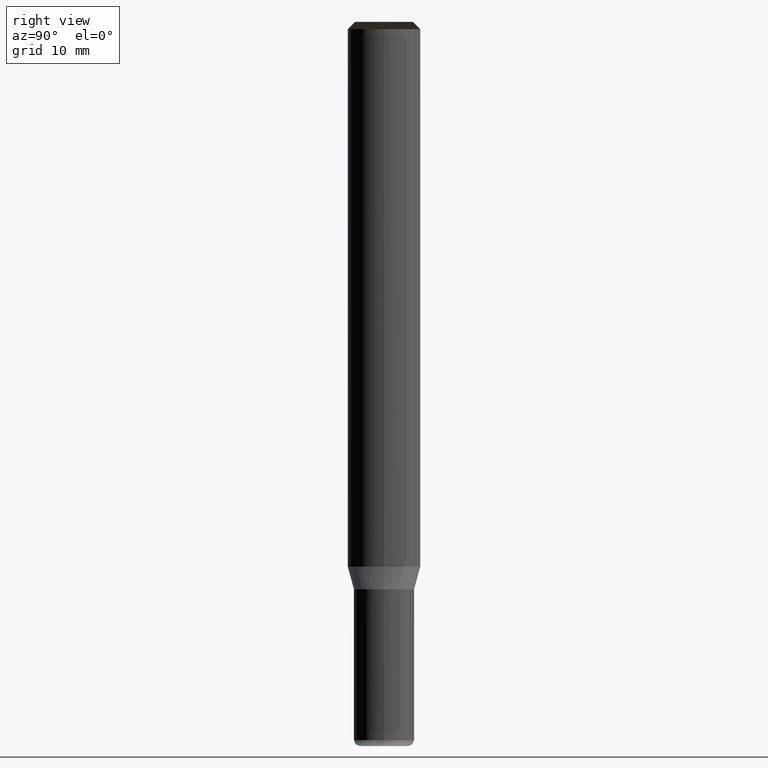
[diagram: clean part render]
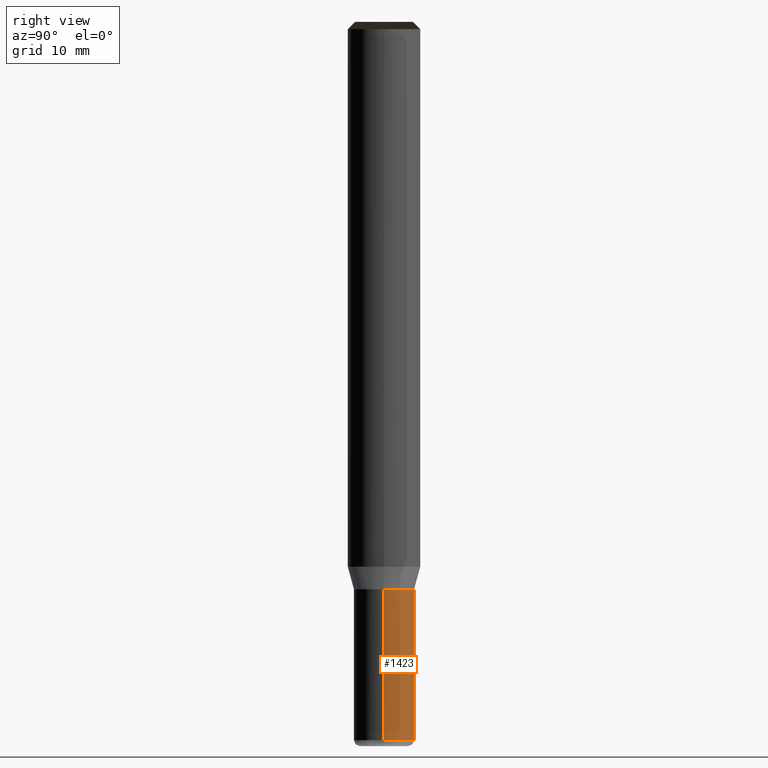
[diagram: same view with one face highlighted and labeled with its STEP entity id]
A machine part, right view. The second image highlights one B-rep face of the part: STEP entity #1423.
In plain terms, the highlighted face is a freeform B-spline surface patch.
Its self-contained STEP definition (entity closure, byte-faithful):
#1305=CARTESIAN_POINT('',(2.5,0.0,-14.366025403784));
#1306=CARTESIAN_POINT('',(2.5,2.5,-14.366025403784));
#1307=CARTESIAN_POINT('',(0.0,2.5,-14.366025403784));
#1308=CARTESIAN_POINT('',(-2.5,2.5,-14.366025403784));
#1309=CARTESIAN_POINT('',(-2.5,0.0,-14.366025403784));
#1310=CARTESIAN_POINT('',(2.5,0.0,-1.866025403784));
#1311=CARTESIAN_POINT('',(2.5,2.5,-1.866025403784));
#1312=CARTESIAN_POINT('',(0.0,2.5,-1.866025403784));
#1313=CARTESIAN_POINT('',(-2.5,2.5,-1.866025403784));
#1314=CARTESIAN_POINT('',(-2.5,0.0,-1.866025403784));
#1404=(
BOUNDED_SURFACE()
B_SPLINE_SURFACE(1,2,(
(#1305,#1306,#1307,#1308,#1309),
(#1310,#1311,#1312,#1313,#1314)
), .UNSPECIFIED.,.F.,.F.,.F.)
B_SPLINE_SURFACE_WITH_KNOTS((2,2),(3,2,3),(
0.0,1.0),(
0.0,0.5,1.0), .UNSPECIFIED.)
GEOMETRIC_REPRESENTATION_ITEM()
RATIONAL_B_SPLINE_SURFACE(((1.0,0.707106781187,1.0,0.707106781187,1.0),
(1.0,0.707106781187,1.0,0.707106781187,1.0)
))
REPRESENTATION_ITEM('')
SURFACE()
);
#1405=(
BOUNDED_CURVE()
B_SPLINE_CURVE(2,(#1310,#1311,#1312,#1313,#1314),.UNSPECIFIED.,.F.,.F.)
B_SPLINE_CURVE_WITH_KNOTS((3,2,3),
(0.0,0.5,1.0),.UNSPECIFIED.)
CURVE()
GEOMETRIC_REPRESENTATION_ITEM()
RATIONAL_B_SPLINE_CURVE((1.0,0.707106781187,1.0,0.707106781187,1.0))
REPRESENTATION_ITEM('')
);
#1406=(
BOUNDED_CURVE()
B_SPLINE_CURVE(1,(#1314,#1309),.UNSPECIFIED.,.F.,.F.)
B_SPLINE_CURVE_WITH_KNOTS((2,2),
(0.0,1.0),.UNSPECIFIED.)
CURVE()
GEOMETRIC_REPRESENTATION_ITEM()
RATIONAL_B_SPLINE_CURVE((1.0,1.0))
REPRESENTATION_ITEM('')
);
#1407=(
BOUNDED_CURVE()
B_SPLINE_CURVE(2,(#1309,#1308,#1307,#1306,#1305),.UNSPECIFIED.,.F.,.F.)
B_SPLINE_CURVE_WITH_KNOTS((3,2,3),
(0.0,0.5,1.0),.UNSPECIFIED.)
CURVE()
GEOMETRIC_REPRESENTATION_ITEM()
RATIONAL_B_SPLINE_CURVE((1.0,0.707106781187,1.0,0.707106781187,1.0))
REPRESENTATION_ITEM('')
);
#1408=(
BOUNDED_CURVE()
B_SPLINE_CURVE(1,(#1305,#1310),.UNSPECIFIED.,.F.,.F.)
B_SPLINE_CURVE_WITH_KNOTS((2,2),
(0.0,1.0),.UNSPECIFIED.)
CURVE()
GEOMETRIC_REPRESENTATION_ITEM()
RATIONAL_B_SPLINE_CURVE((1.0,1.0))
REPRESENTATION_ITEM('')
);
#1409=VERTEX_POINT('',#1305);
#1410=VERTEX_POINT('',#1309);
#1411=VERTEX_POINT('',#1310);
#1412=VERTEX_POINT('',#1314);
#1413=EDGE_CURVE('',#1411,#1412,#1405,.T.);
#1414=EDGE_CURVE('',#1412,#1410,#1406,.T.);
#1415=EDGE_CURVE('',#1410,#1409,#1407,.T.);
#1416=EDGE_CURVE('',#1409,#1411,#1408,.T.);
#1417=ORIENTED_EDGE('',*,*,#1413,.T.);
#1418=ORIENTED_EDGE('',*,*,#1414,.T.);
#1419=ORIENTED_EDGE('',*,*,#1415,.T.);
#1420=ORIENTED_EDGE('',*,*,#1416,.T.);
#1421=EDGE_LOOP('',(#1417,#1418,#1419,#1420));
#1422=FACE_OUTER_BOUND('',#1421,.T.);
#1423=ADVANCED_FACE('',(#1422),#1404,.T.);